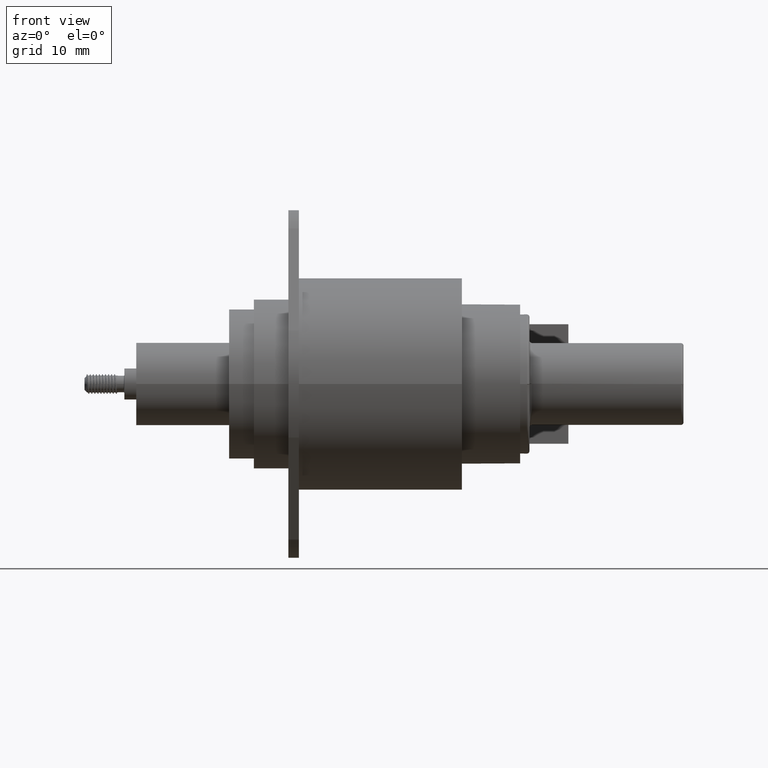
[diagram: clean part render]
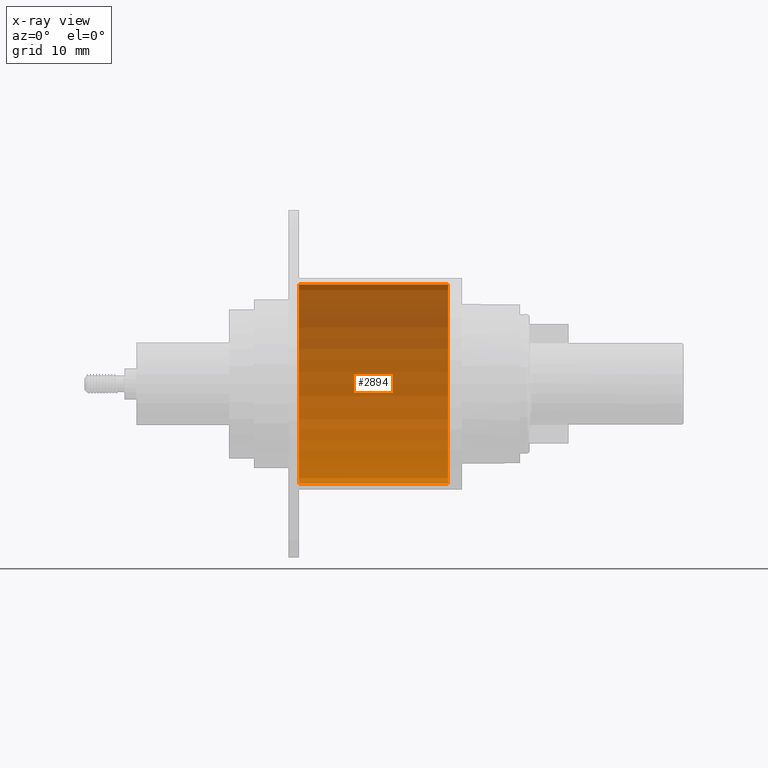
[diagram: x-ray — body ghosted, one internal face saturated and labeled with its STEP entity id]
A machine part, front view, then the same camera in x-ray: the body is ghosted and one INTERNAL B-rep face — a face not visible from any outside direction — is saturated and labeled: STEP entity #2894.
In plain terms, the highlighted cylindrical surface (partial cylindrical patch) has radius 9.5123 mm, axis along (-1, -0, 0).
Its self-contained STEP definition (entity closure, byte-faithful):
#1362=CARTESIAN_POINT('',(2.999989451745E-1,0.E0,1.115024714618E-14));
#1363=DIRECTION('',(-1.E0,0.E0,-2.103820216261E-14));
#1364=DIRECTION('',(1.452628256519E-14,7.259747974226E-1,-6.877213051137E-1));
#1365=AXIS2_PLACEMENT_3D('',#1362,#1363,#1364);
#1448=DIRECTION('',(1.E0,0.E0,2.204628089861E-14));
#1449=VECTOR('',#1448,5.615E-1);
#1450=CARTESIAN_POINT('',(-2.615010548255E-1,-2.718775616347E-1,
2.575516287651E-1));
#1451=LINE('',#1450,#1449);
#1452=CARTESIAN_POINT('',(-2.615010548255E-1,0.E0,0.E0));
#1453=DIRECTION('',(1.E0,0.E0,2.103820216261E-14));
#1454=DIRECTION('',(-1.452628256519E-14,-7.259747974226E-1,6.877213051137E-1));
#1455=AXIS2_PLACEMENT_3D('',#1452,#1453,#1454);
#1497=DIRECTION('',(1.E0,0.E0,1.977244923642E-14));
#1498=VECTOR('',#1497,5.615E-1);
#1499=CARTESIAN_POINT('',(-2.615010548255E-1,2.718775616347E-1,
-2.575516287651E-1));
#1500=LINE('',#1499,#1498);
#2345=CARTESIAN_POINT('',(2.999989451745E-1,2.718775616347E-1,
-2.575516287651E-1));
#2346=CARTESIAN_POINT('',(2.999989451745E-1,-2.718775616348E-1,
2.575516287651E-1));
#2347=VERTEX_POINT('',#2345);
#2348=VERTEX_POINT('',#2346);
#2377=CARTESIAN_POINT('',(-2.615010548255E-1,-2.718775616348E-1,
2.575516287651E-1));
#2378=CARTESIAN_POINT('',(-2.615010548255E-1,2.718775616348E-1,
-2.575516287651E-1));
#2379=VERTEX_POINT('',#2377);
#2380=VERTEX_POINT('',#2378);
#2880=CARTESIAN_POINT('',(-2.300010548255E-1,0.E0,0.E0));
#2881=DIRECTION('',(-1.E0,0.E0,-2.103820216261E-14));
#2882=DIRECTION('',(-1.446841984852E-14,-7.259747974224E-1,6.877213051139E-1));
#2883=AXIS2_PLACEMENT_3D('',#2880,#2881,#2882);
#2884=CYLINDRICAL_SURFACE('',#2883,3.745E-1);
#2886=ORIENTED_EDGE('',*,*,#2885,.F.);
#2888=ORIENTED_EDGE('',*,*,#2887,.T.);
#2889=ORIENTED_EDGE('',*,*,#2839,.F.);
#2891=ORIENTED_EDGE('',*,*,#2890,.F.);
#2892=EDGE_LOOP('',(#2886,#2888,#2889,#2891));
#2893=FACE_OUTER_BOUND('',#2892,.F.);
#2894=ADVANCED_FACE('',(#2893),#2884,.T.);
#1366=CIRCLE('',#1365,3.745E-1);
#1456=CIRCLE('',#1455,3.745E-1);
#2839=EDGE_CURVE('',#2347,#2348,#1366,.T.);
#2885=EDGE_CURVE('',#2379,#2380,#1456,.T.);
#2887=EDGE_CURVE('',#2379,#2348,#1451,.T.);
#2890=EDGE_CURVE('',#2380,#2347,#1500,.T.);